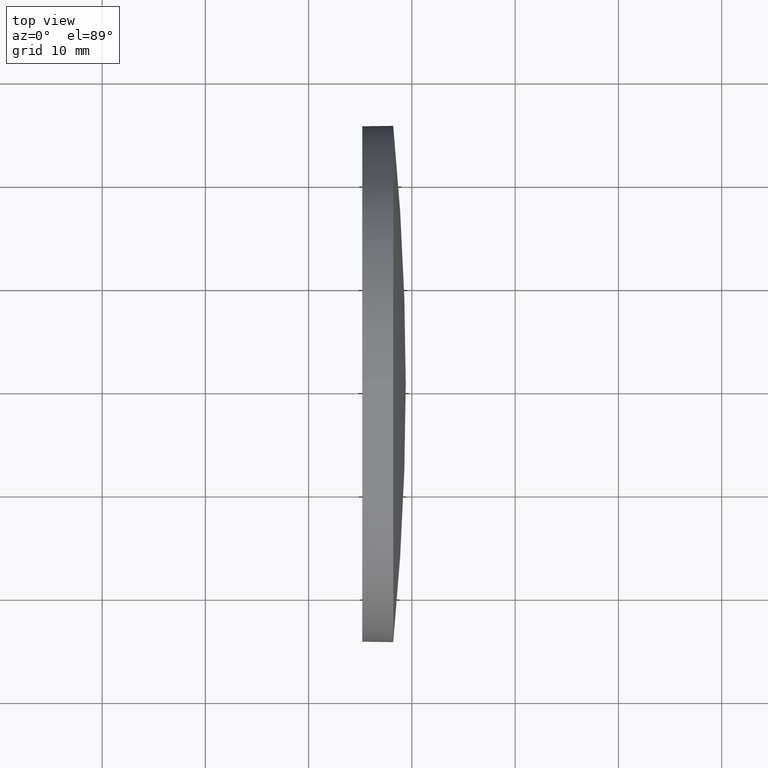
[diagram: clean part render]
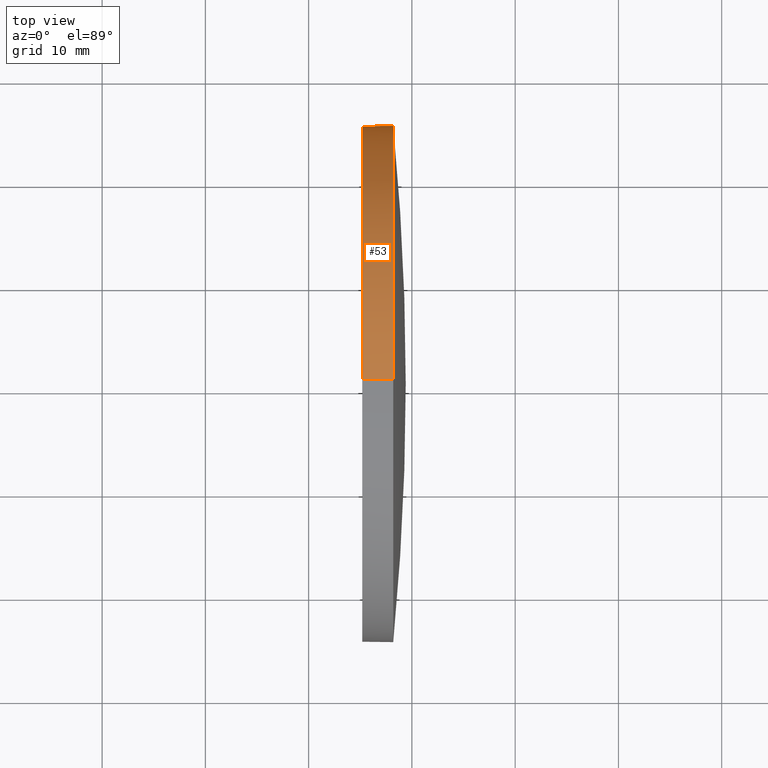
[diagram: same view with one face highlighted and labeled with its STEP entity id]
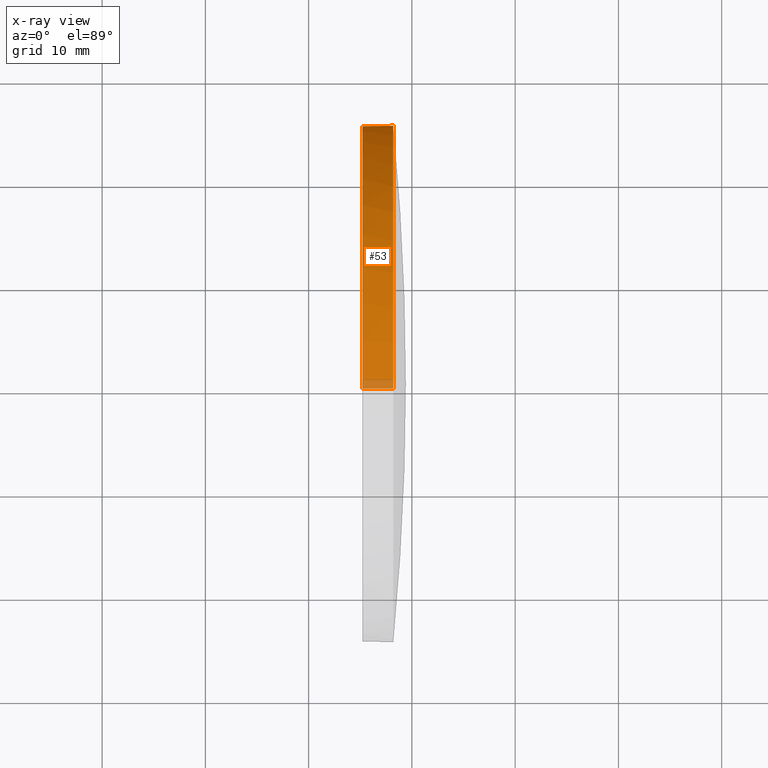
[diagram: x-ray of the same camera — body ghosted, the highlighted face saturated]
A machine part, top view. The second image highlights one B-rep face of the part: STEP entity #53.
The next image is the same camera in x-ray: the body ghosted, the highlighted face saturated — about 3% of this face is hidden behind the body in this view.
In plain terms, the highlighted cylindrical surface (partial cylindrical patch) has radius 25 mm, axis along (-1, -0, -0).
Its self-contained STEP definition (entity closure, byte-faithful):
#5 = CARTESIAN_POINT ( 'NONE',  ( 515.1917518471264000, 110.4965729746752500, -24.99999999999999300 ) ) ;
#11 = CARTESIAN_POINT ( 'NONE',  ( 518.1917518471264000, 110.4965729746752500, 24.99999999999999300 ) ) ;
#17 = ORIENTED_EDGE ( 'NONE', *, *, #94, .T. ) ;
#19 = LINE ( 'NONE', #129, #119 ) ;
#23 = DIRECTION ( 'NONE',  ( -1.000000000000000000, -0.0000000000000000000, -0.0000000000000000000 ) ) ;
#25 = CIRCLE ( 'NONE', #110, 24.99999999999999300 ) ;
#39 = DIRECTION ( 'NONE',  ( -1.000000000000000000, -0.0000000000000000000, -0.0000000000000000000 ) ) ;
#41 = CARTESIAN_POINT ( 'NONE',  ( 511.2199765580103300, 110.4965729746752500, 0.0000000000000000000 ) ) ;
#53 = ADVANCED_FACE ( 'NONE', ( #64 ), #54, .T. ) ;
#54 = CYLINDRICAL_SURFACE ( 'NONE', #65, 24.99999999999999300 ) ;
#56 = DIRECTION ( 'NONE',  ( 0.0000000000000000000, 0.0000000000000000000, 1.000000000000000000 ) ) ;
#57 = CARTESIAN_POINT ( 'NONE',  ( 518.1917518471264000, 110.4965729746752500, 0.0000000000000000000 ) ) ;
#62 = DIRECTION ( 'NONE',  ( -1.000000000000000000, -0.0000000000000000000, -0.0000000000000000000 ) ) ;
#64 = FACE_OUTER_BOUND ( 'NONE', #138, .T. ) ;
#65 = AXIS2_PLACEMENT_3D ( 'NONE', #41, #39, #56 ) ;
#68 = VERTEX_POINT ( 'NONE', #5 ) ;
#69 = EDGE_CURVE ( 'NONE', #185, #172, #165, .T. ) ;
#74 = EDGE_CURVE ( 'NONE', #141, #68, #123, .T. ) ;
#78 = CARTESIAN_POINT ( 'NONE',  ( 515.1917518471264000, 110.4965729746752500, 24.99999999999999300 ) ) ;
#85 = VERTEX_POINT ( 'NONE', #11 ) ;
#87 = ORIENTED_EDGE ( 'NONE', *, *, #74, .F. ) ;
#90 = CARTESIAN_POINT ( 'NONE',  ( 518.1917518471264000, 110.4965729746752500, 0.0000000000000000000 ) ) ;
#91 = CARTESIAN_POINT ( 'NONE',  ( 518.1917518471264000, 135.4965729746751000, 0.0000000000000000000 ) ) ;
#92 = CARTESIAN_POINT ( 'NONE',  ( 518.1917518471264000, 110.4965729746752500, -24.99999999999999300 ) ) ;
#94 = EDGE_CURVE ( 'NONE', #85, #185, #25, .T. ) ;
#96 = EDGE_CURVE ( 'NONE', #85, #141, #19, .T. ) ;
#106 = DIRECTION ( 'NONE',  ( 0.0000000000000000000, 0.0000000000000000000, 1.000000000000000000 ) ) ;
#109 = CARTESIAN_POINT ( 'NONE',  ( 515.1917518471264000, 110.4965729746752500, 0.0000000000000000000 ) ) ;
#110 = AXIS2_PLACEMENT_3D ( 'NONE', #90, #62, #106 ) ;
#119 = VECTOR ( 'NONE', #145, 1000.000000000000000 ) ;
#121 = DIRECTION ( 'NONE',  ( 0.0000000000000000000, 0.0000000000000000000, 1.000000000000000000 ) ) ;
#122 = ORIENTED_EDGE ( 'NONE', *, *, #96, .F. ) ;
#123 = CIRCLE ( 'NONE', #186, 24.99999999999999300 ) ;
#129 = CARTESIAN_POINT ( 'NONE',  ( 511.2199765580103300, 110.4965729746752500, 24.99999999999999300 ) ) ;
#131 = CARTESIAN_POINT ( 'NONE',  ( 511.2199765580103300, 110.4965729746752500, -24.99999999999999300 ) ) ;
#134 = DIRECTION ( 'NONE',  ( 0.0000000000000000000, 0.0000000000000000000, 1.000000000000000000 ) ) ;
#137 = VECTOR ( 'NONE', #181, 1000.000000000000000 ) ;
#138 = EDGE_LOOP ( 'NONE', ( #153, #169, #87, #122, #17 ) ) ;
#141 = VERTEX_POINT ( 'NONE', #78 ) ;
#145 = DIRECTION ( 'NONE',  ( -1.000000000000000000, -0.0000000000000000000, -0.0000000000000000000 ) ) ;
#149 = EDGE_CURVE ( 'NONE', #172, #68, #171, .T. ) ;
#153 = ORIENTED_EDGE ( 'NONE', *, *, #69, .T. ) ;
#156 = AXIS2_PLACEMENT_3D ( 'NONE', #57, #179, #121 ) ;
#165 = CIRCLE ( 'NONE', #156, 24.99999999999999300 ) ;
#169 = ORIENTED_EDGE ( 'NONE', *, *, #149, .T. ) ;
#171 = LINE ( 'NONE', #131, #137 ) ;
#172 = VERTEX_POINT ( 'NONE', #92 ) ;
#179 = DIRECTION ( 'NONE',  ( -1.000000000000000000, -0.0000000000000000000, -0.0000000000000000000 ) ) ;
#181 = DIRECTION ( 'NONE',  ( -1.000000000000000000, -0.0000000000000000000, -0.0000000000000000000 ) ) ;
#185 = VERTEX_POINT ( 'NONE', #91 ) ;
#186 = AXIS2_PLACEMENT_3D ( 'NONE', #109, #23, #134 ) ;